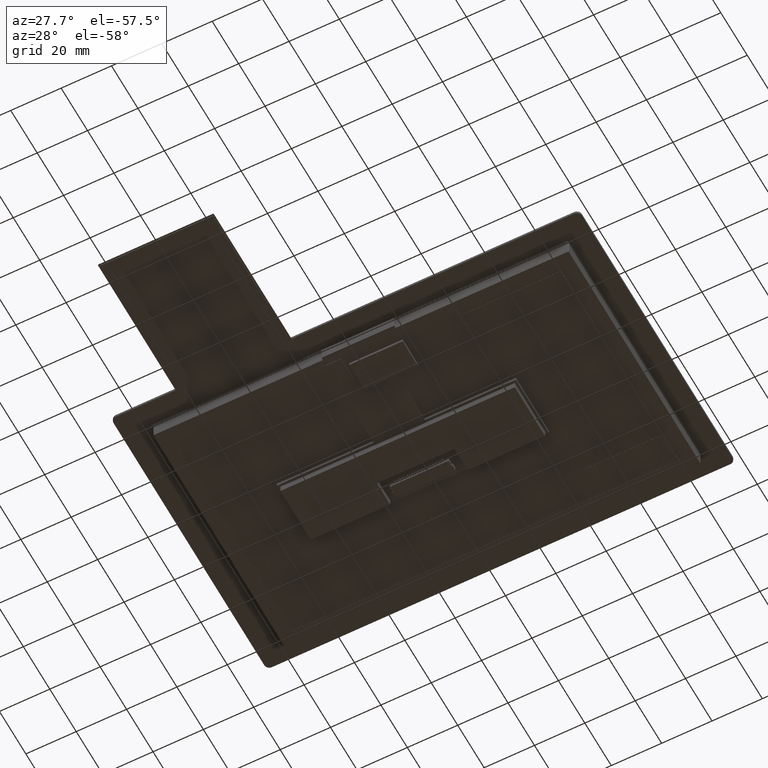
[diagram: clean part render]
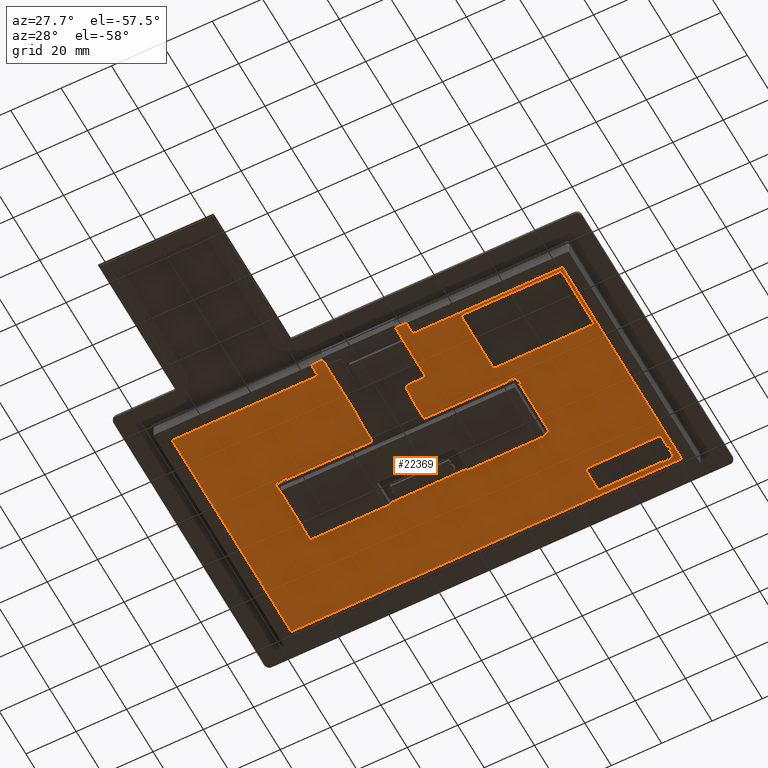
[diagram: same view with one face highlighted and labeled with its STEP entity id]
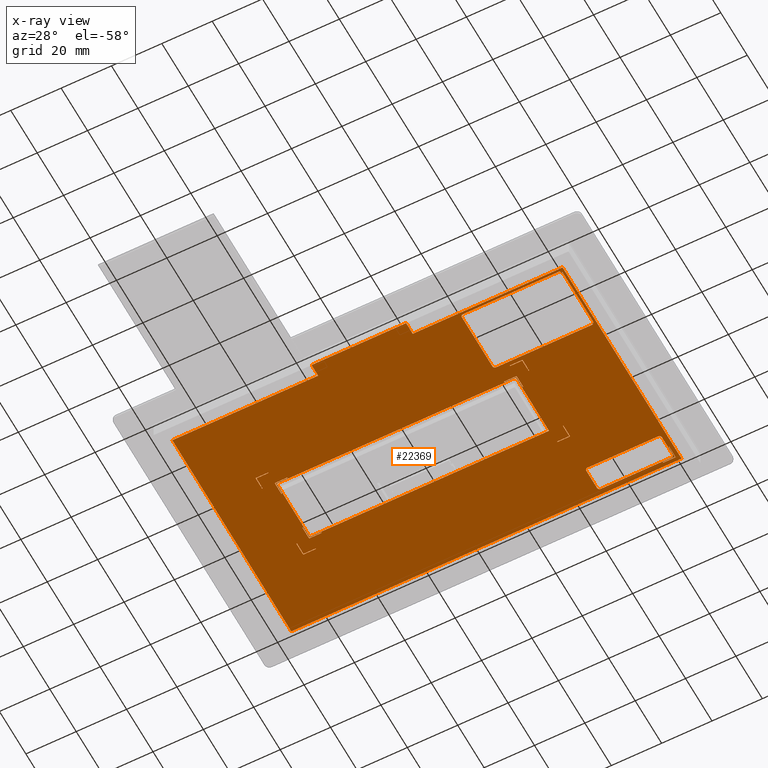
[diagram: x-ray of the same camera — body ghosted, the highlighted face saturated]
A machine part, auxiliary view. The second image highlights one B-rep face of the part: STEP entity #22369.
The next image is the same camera in x-ray: the body ghosted, the highlighted face saturated — about 0% of this face is hidden behind the body in this view.
In plain terms, the highlighted planar face has unit normal (0, 0, -1).
Its self-contained STEP definition (entity closure, byte-faithful):
#115=CIRCLE('',#22492,1.);
#119=CIRCLE('',#22499,1.);
#120=CIRCLE('',#22501,1.);
#121=CIRCLE('',#22504,1.);
#148=CIRCLE('',#22608,1.);
#150=CIRCLE('',#22612,1.00000000000003);
#152=CIRCLE('',#22616,0.999999999999999);
#154=CIRCLE('',#22620,0.999999999999976);
#779=FACE_BOUND('',#3086,.T.);
#780=FACE_BOUND('',#3087,.T.);
#781=FACE_BOUND('',#3088,.T.);
#782=FACE_BOUND('',#3089,.T.);
#783=FACE_BOUND('',#3090,.T.);
#784=FACE_BOUND('',#3091,.T.);
#785=FACE_BOUND('',#3092,.T.);
#786=FACE_BOUND('',#3093,.T.);
#787=FACE_BOUND('',#3094,.T.);
#788=FACE_BOUND('',#3095,.T.);
#789=FACE_BOUND('',#3096,.T.);
#1866=FACE_OUTER_BOUND('',#3085,.T.);
#3085=EDGE_LOOP('',(#20027,#20028,#20029,#20030,#20031,#20032,#20033,#20034));
#3086=EDGE_LOOP('',(#20035,#20036,#20037,#20038,#20039,#20040,#20041,#20042));
#3087=EDGE_LOOP('',(#20043,#20044,#20045,#20046,#20047,#20048,#20049,#20050));
#3088=EDGE_LOOP('',(#20051,#20052,#20053,#20054));
#3089=EDGE_LOOP('',(#20055,#20056,#20057,#20058,#20059,#20060));
#3090=EDGE_LOOP('',(#20061,#20062,#20063,#20064,#20065,#20066));
#3091=EDGE_LOOP('',(#20067,#20068,#20069,#20070,#20071,#20072));
#3092=EDGE_LOOP('',(#20073,#20074,#20075,#20076,#20077,#20078));
#3093=EDGE_LOOP('',(#20079,#20080,#20081,#20082,#20083,#20084));
#3094=EDGE_LOOP('',(#20085,#20086,#20087,#20088,#20089,#20090));
#3095=EDGE_LOOP('',(#20091,#20092,#20093,#20094,#20095,#20096));
#3096=EDGE_LOOP('',(#20097,#20098,#20099,#20100,#20101,#20102));
#3248=LINE('',#30207,#5993);
#3254=LINE('',#30222,#5999);
#3256=LINE('',#30228,#6001);
#3257=LINE('',#30230,#6002);
#3443=LINE('',#30667,#6188);
#3447=LINE('',#30679,#6192);
#3451=LINE('',#30691,#6196);
#3455=LINE('',#30702,#6200);
#5723=LINE('',#36078,#8468);
#5726=LINE('',#36083,#8471);
#5728=LINE('',#36087,#8473);
#5730=LINE('',#36090,#8475);
#5731=LINE('',#36094,#8476);
#5735=LINE('',#36102,#8480);
#5738=LINE('',#36108,#8483);
#5741=LINE('',#36114,#8486);
#5744=LINE('',#36120,#8489);
#5747=LINE('',#36126,#8492);
#5750=LINE('',#36132,#8495);
#5756=LINE('',#36149,#8501);
#5757=LINE('',#36152,#8502);
#5758=LINE('',#36154,#8503);
#5759=LINE('',#36156,#8504);
#5760=LINE('',#36158,#8505);
#5761=LINE('',#36160,#8506);
#5762=LINE('',#36161,#8507);
#5763=LINE('',#36164,#8508);
#5764=LINE('',#36166,#8509);
#5765=LINE('',#36168,#8510);
#5766=LINE('',#36170,#8511);
#5767=LINE('',#36172,#8512);
#5768=LINE('',#36173,#8513);
#5769=LINE('',#36176,#8514);
#5770=LINE('',#36178,#8515);
#5771=LINE('',#36180,#8516);
#5772=LINE('',#36182,#8517);
#5773=LINE('',#36184,#8518);
#5774=LINE('',#36185,#8519);
#5775=LINE('',#36188,#8520);
#5776=LINE('',#36190,#8521);
#5777=LINE('',#36192,#8522);
#5778=LINE('',#36194,#8523);
#5779=LINE('',#36196,#8524);
#5780=LINE('',#36197,#8525);
#5781=LINE('',#36200,#8526);
#5782=LINE('',#36202,#8527);
#5783=LINE('',#36204,#8528);
#5784=LINE('',#36206,#8529);
#5785=LINE('',#36208,#8530);
#5786=LINE('',#36209,#8531);
#5787=LINE('',#36212,#8532);
#5788=LINE('',#36214,#8533);
#5789=LINE('',#36216,#8534);
#5790=LINE('',#36218,#8535);
#5791=LINE('',#36220,#8536);
#5792=LINE('',#36221,#8537);
#5793=LINE('',#36224,#8538);
#5794=LINE('',#36226,#8539);
#5795=LINE('',#36228,#8540);
#5796=LINE('',#36230,#8541);
#5797=LINE('',#36232,#8542);
#5798=LINE('',#36233,#8543);
#5799=LINE('',#36236,#8544);
#5800=LINE('',#36238,#8545);
#5801=LINE('',#36240,#8546);
#5802=LINE('',#36242,#8547);
#5803=LINE('',#36244,#8548);
#5804=LINE('',#36245,#8549);
#5993=VECTOR('',#24231,10.);
#5999=VECTOR('',#24247,10.);
#6001=VECTOR('',#24255,10.);
#6002=VECTOR('',#24258,10.);
#6188=VECTOR('',#24652,10.);
#6192=VECTOR('',#24664,10.);
#6196=VECTOR('',#24676,10.);
#6200=VECTOR('',#24688,10.);
#8468=VECTOR('',#29672,10.);
#8471=VECTOR('',#29677,10.);
#8473=VECTOR('',#29681,10.);
#8475=VECTOR('',#29685,10.);
#8476=VECTOR('',#29688,10.);
#8480=VECTOR('',#29694,10.);
#8483=VECTOR('',#29699,10.);
#8486=VECTOR('',#29704,10.);
#8489=VECTOR('',#29709,10.);
#8492=VECTOR('',#29714,10.);
#8495=VECTOR('',#29719,10.);
#8501=VECTOR('',#29737,1000.);
#8502=VECTOR('',#29738,1000.);
#8503=VECTOR('',#29739,1000.);
#8504=VECTOR('',#29740,1000.);
#8505=VECTOR('',#29741,1000.);
#8506=VECTOR('',#29742,1000.);
#8507=VECTOR('',#29743,1000.);
#8508=VECTOR('',#29744,1000.);
#8509=VECTOR('',#29745,1000.);
#8510=VECTOR('',#29746,1000.);
#8511=VECTOR('',#29747,1000.);
#8512=VECTOR('',#29748,1000.);
#8513=VECTOR('',#29749,1000.);
#8514=VECTOR('',#29750,1000.);
#8515=VECTOR('',#29751,1000.);
#8516=VECTOR('',#29752,1000.);
#8517=VECTOR('',#29753,1000.);
#8518=VECTOR('',#29754,1000.);
#8519=VECTOR('',#29755,1000.);
#8520=VECTOR('',#29756,1000.);
#8521=VECTOR('',#29757,1000.);
#8522=VECTOR('',#29758,1000.);
#8523=VECTOR('',#29759,1000.);
#8524=VECTOR('',#29760,1000.);
#8525=VECTOR('',#29761,1000.);
#8526=VECTOR('',#29762,1000.);
#8527=VECTOR('',#29763,1000.);
#8528=VECTOR('',#29764,1000.);
#8529=VECTOR('',#29765,1000.);
#8530=VECTOR('',#29766,1000.);
#8531=VECTOR('',#29767,1000.);
#8532=VECTOR('',#29768,1000.);
#8533=VECTOR('',#29769,1000.);
#8534=VECTOR('',#29770,1000.);
#8535=VECTOR('',#29771,1000.);
#8536=VECTOR('',#29772,1000.);
#8537=VECTOR('',#29773,1000.);
#8538=VECTOR('',#29774,1000.);
#8539=VECTOR('',#29775,1000.);
#8540=VECTOR('',#29776,1000.);
#8541=VECTOR('',#29777,1000.);
#8542=VECTOR('',#29778,1000.);
#8543=VECTOR('',#29779,1000.);
#8544=VECTOR('',#29780,1000.);
#8545=VECTOR('',#29781,1000.);
#8546=VECTOR('',#29782,1000.);
#8547=VECTOR('',#29783,1000.);
#8548=VECTOR('',#29784,1000.);
#8549=VECTOR('',#29785,1000.);
#8708=VERTEX_POINT('',#30186);
#8709=VERTEX_POINT('',#30188);
#8716=VERTEX_POINT('',#30206);
#8717=VERTEX_POINT('',#30210);
#8718=VERTEX_POINT('',#30214);
#8719=VERTEX_POINT('',#30216);
#8720=VERTEX_POINT('',#30220);
#8721=VERTEX_POINT('',#30224);
#8864=VERTEX_POINT('',#30657);
#8865=VERTEX_POINT('',#30658);
#8868=VERTEX_POINT('',#30666);
#8870=VERTEX_POINT('',#30672);
#8872=VERTEX_POINT('',#30678);
#8874=VERTEX_POINT('',#30684);
#8876=VERTEX_POINT('',#30690);
#8878=VERTEX_POINT('',#30696);
#10628=VERTEX_POINT('',#36076);
#10629=VERTEX_POINT('',#36077);
#10630=VERTEX_POINT('',#36082);
#10631=VERTEX_POINT('',#36086);
#10632=VERTEX_POINT('',#36092);
#10633=VERTEX_POINT('',#36093);
#10636=VERTEX_POINT('',#36101);
#10638=VERTEX_POINT('',#36107);
#10640=VERTEX_POINT('',#36113);
#10642=VERTEX_POINT('',#36119);
#10644=VERTEX_POINT('',#36125);
#10646=VERTEX_POINT('',#36131);
#10652=VERTEX_POINT('',#36150);
#10653=VERTEX_POINT('',#36151);
#10654=VERTEX_POINT('',#36153);
#10655=VERTEX_POINT('',#36155);
#10656=VERTEX_POINT('',#36157);
#10657=VERTEX_POINT('',#36159);
#10658=VERTEX_POINT('',#36162);
#10659=VERTEX_POINT('',#36163);
#10660=VERTEX_POINT('',#36165);
#10661=VERTEX_POINT('',#36167);
#10662=VERTEX_POINT('',#36169);
#10663=VERTEX_POINT('',#36171);
#10664=VERTEX_POINT('',#36174);
#10665=VERTEX_POINT('',#36175);
#10666=VERTEX_POINT('',#36177);
#10667=VERTEX_POINT('',#36179);
#10668=VERTEX_POINT('',#36181);
#10669=VERTEX_POINT('',#36183);
#10670=VERTEX_POINT('',#36186);
#10671=VERTEX_POINT('',#36187);
#10672=VERTEX_POINT('',#36189);
#10673=VERTEX_POINT('',#36191);
#10674=VERTEX_POINT('',#36193);
#10675=VERTEX_POINT('',#36195);
#10676=VERTEX_POINT('',#36198);
#10677=VERTEX_POINT('',#36199);
#10678=VERTEX_POINT('',#36201);
#10679=VERTEX_POINT('',#36203);
#10680=VERTEX_POINT('',#36205);
#10681=VERTEX_POINT('',#36207);
#10682=VERTEX_POINT('',#36210);
#10683=VERTEX_POINT('',#36211);
#10684=VERTEX_POINT('',#36213);
#10685=VERTEX_POINT('',#36215);
#10686=VERTEX_POINT('',#36217);
#10687=VERTEX_POINT('',#36219);
#10688=VERTEX_POINT('',#36222);
#10689=VERTEX_POINT('',#36223);
#10690=VERTEX_POINT('',#36225);
#10691=VERTEX_POINT('',#36227);
#10692=VERTEX_POINT('',#36229);
#10693=VERTEX_POINT('',#36231);
#10694=VERTEX_POINT('',#36234);
#10695=VERTEX_POINT('',#36235);
#10696=VERTEX_POINT('',#36237);
#10697=VERTEX_POINT('',#36239);
#10698=VERTEX_POINT('',#36241);
#10699=VERTEX_POINT('',#36243);
#10832=EDGE_CURVE('',#8709,#8708,#115,.T.);
#10841=EDGE_CURVE('',#8716,#8709,#3248,.T.);
#10843=EDGE_CURVE('',#8717,#8716,#119,.T.);
#10846=EDGE_CURVE('',#8719,#8718,#120,.T.);
#10849=EDGE_CURVE('',#8718,#8720,#3254,.T.);
#10851=EDGE_CURVE('',#8720,#8721,#121,.T.);
#10852=EDGE_CURVE('',#8721,#8717,#3256,.T.);
#10853=EDGE_CURVE('',#8708,#8719,#3257,.T.);
#11063=EDGE_CURVE('',#8864,#8865,#148,.T.);
#11067=EDGE_CURVE('',#8868,#8864,#3443,.T.);
#11070=EDGE_CURVE('',#8870,#8868,#150,.T.);
#11073=EDGE_CURVE('',#8872,#8870,#3447,.T.);
#11076=EDGE_CURVE('',#8874,#8872,#152,.T.);
#11079=EDGE_CURVE('',#8876,#8874,#3451,.T.);
#11082=EDGE_CURVE('',#8878,#8876,#154,.T.);
#11085=EDGE_CURVE('',#8865,#8878,#3455,.T.);
#13771=EDGE_CURVE('',#10628,#10629,#5723,.T.);
#13774=EDGE_CURVE('',#10630,#10628,#5726,.T.);
#13776=EDGE_CURVE('',#10631,#10630,#5728,.T.);
#13778=EDGE_CURVE('',#10629,#10631,#5730,.T.);
#13779=EDGE_CURVE('',#10632,#10633,#5731,.T.);
#13783=EDGE_CURVE('',#10633,#10636,#5735,.T.);
#13786=EDGE_CURVE('',#10636,#10638,#5738,.T.);
#13789=EDGE_CURVE('',#10638,#10640,#5741,.T.);
#13792=EDGE_CURVE('',#10640,#10642,#5744,.T.);
#13795=EDGE_CURVE('',#10642,#10644,#5747,.T.);
#13798=EDGE_CURVE('',#10644,#10646,#5750,.T.);
#13808=EDGE_CURVE('',#10632,#10646,#5756,.T.);
#13809=EDGE_CURVE('',#10652,#10653,#5757,.T.);
#13810=EDGE_CURVE('',#10654,#10652,#5758,.T.);
#13811=EDGE_CURVE('',#10655,#10654,#5759,.T.);
#13812=EDGE_CURVE('',#10656,#10655,#5760,.T.);
#13813=EDGE_CURVE('',#10657,#10656,#5761,.T.);
#13814=EDGE_CURVE('',#10653,#10657,#5762,.T.);
#13815=EDGE_CURVE('',#10658,#10659,#5763,.T.);
#13816=EDGE_CURVE('',#10660,#10658,#5764,.T.);
#13817=EDGE_CURVE('',#10661,#10660,#5765,.T.);
#13818=EDGE_CURVE('',#10662,#10661,#5766,.T.);
#13819=EDGE_CURVE('',#10663,#10662,#5767,.T.);
#13820=EDGE_CURVE('',#10659,#10663,#5768,.T.);
#13821=EDGE_CURVE('',#10664,#10665,#5769,.T.);
#13822=EDGE_CURVE('',#10666,#10664,#5770,.T.);
#13823=EDGE_CURVE('',#10667,#10666,#5771,.T.);
#13824=EDGE_CURVE('',#10668,#10667,#5772,.T.);
#13825=EDGE_CURVE('',#10669,#10668,#5773,.T.);
#13826=EDGE_CURVE('',#10665,#10669,#5774,.T.);
#13827=EDGE_CURVE('',#10670,#10671,#5775,.T.);
#13828=EDGE_CURVE('',#10672,#10670,#5776,.T.);
#13829=EDGE_CURVE('',#10673,#10672,#5777,.T.);
#13830=EDGE_CURVE('',#10674,#10673,#5778,.T.);
#13831=EDGE_CURVE('',#10675,#10674,#5779,.T.);
#13832=EDGE_CURVE('',#10671,#10675,#5780,.T.);
#13833=EDGE_CURVE('',#10676,#10677,#5781,.T.);
#13834=EDGE_CURVE('',#10678,#10676,#5782,.T.);
#13835=EDGE_CURVE('',#10679,#10678,#5783,.T.);
#13836=EDGE_CURVE('',#10680,#10679,#5784,.T.);
#13837=EDGE_CURVE('',#10681,#10680,#5785,.T.);
#13838=EDGE_CURVE('',#10677,#10681,#5786,.T.);
#13839=EDGE_CURVE('',#10682,#10683,#5787,.T.);
#13840=EDGE_CURVE('',#10684,#10682,#5788,.T.);
#13841=EDGE_CURVE('',#10685,#10684,#5789,.T.);
#13842=EDGE_CURVE('',#10686,#10685,#5790,.T.);
#13843=EDGE_CURVE('',#10687,#10686,#5791,.T.);
#13844=EDGE_CURVE('',#10683,#10687,#5792,.T.);
#13845=EDGE_CURVE('',#10688,#10689,#5793,.T.);
#13846=EDGE_CURVE('',#10690,#10688,#5794,.T.);
#13847=EDGE_CURVE('',#10691,#10690,#5795,.T.);
#13848=EDGE_CURVE('',#10692,#10691,#5796,.T.);
#13849=EDGE_CURVE('',#10693,#10692,#5797,.T.);
#13850=EDGE_CURVE('',#10689,#10693,#5798,.T.);
#13851=EDGE_CURVE('',#10694,#10695,#5799,.T.);
#13852=EDGE_CURVE('',#10696,#10694,#5800,.T.);
#13853=EDGE_CURVE('',#10697,#10696,#5801,.T.);
#13854=EDGE_CURVE('',#10698,#10697,#5802,.T.);
#13855=EDGE_CURVE('',#10699,#10698,#5803,.T.);
#13856=EDGE_CURVE('',#10695,#10699,#5804,.T.);
#20027=ORIENTED_EDGE('',*,*,#13779,.T.);
#20028=ORIENTED_EDGE('',*,*,#13783,.T.);
#20029=ORIENTED_EDGE('',*,*,#13786,.T.);
#20030=ORIENTED_EDGE('',*,*,#13789,.T.);
#20031=ORIENTED_EDGE('',*,*,#13792,.T.);
#20032=ORIENTED_EDGE('',*,*,#13795,.T.);
#20033=ORIENTED_EDGE('',*,*,#13798,.T.);
#20034=ORIENTED_EDGE('',*,*,#13808,.F.);
#20035=ORIENTED_EDGE('',*,*,#10846,.T.);
#20036=ORIENTED_EDGE('',*,*,#10849,.T.);
#20037=ORIENTED_EDGE('',*,*,#10851,.T.);
#20038=ORIENTED_EDGE('',*,*,#10852,.T.);
#20039=ORIENTED_EDGE('',*,*,#10843,.T.);
#20040=ORIENTED_EDGE('',*,*,#10841,.T.);
#20041=ORIENTED_EDGE('',*,*,#10832,.T.);
#20042=ORIENTED_EDGE('',*,*,#10853,.T.);
#20043=ORIENTED_EDGE('',*,*,#11063,.T.);
#20044=ORIENTED_EDGE('',*,*,#11085,.T.);
#20045=ORIENTED_EDGE('',*,*,#11082,.T.);
#20046=ORIENTED_EDGE('',*,*,#11079,.T.);
#20047=ORIENTED_EDGE('',*,*,#11076,.T.);
#20048=ORIENTED_EDGE('',*,*,#11073,.T.);
#20049=ORIENTED_EDGE('',*,*,#11070,.T.);
#20050=ORIENTED_EDGE('',*,*,#11067,.T.);
#20051=ORIENTED_EDGE('',*,*,#13771,.T.);
#20052=ORIENTED_EDGE('',*,*,#13778,.T.);
#20053=ORIENTED_EDGE('',*,*,#13776,.T.);
#20054=ORIENTED_EDGE('',*,*,#13774,.T.);
#20055=ORIENTED_EDGE('',*,*,#13809,.F.);
#20056=ORIENTED_EDGE('',*,*,#13810,.F.);
#20057=ORIENTED_EDGE('',*,*,#13811,.F.);
#20058=ORIENTED_EDGE('',*,*,#13812,.F.);
#20059=ORIENTED_EDGE('',*,*,#13813,.F.);
#20060=ORIENTED_EDGE('',*,*,#13814,.F.);
#20061=ORIENTED_EDGE('',*,*,#13815,.F.);
#20062=ORIENTED_EDGE('',*,*,#13816,.F.);
#20063=ORIENTED_EDGE('',*,*,#13817,.F.);
#20064=ORIENTED_EDGE('',*,*,#13818,.F.);
#20065=ORIENTED_EDGE('',*,*,#13819,.F.);
#20066=ORIENTED_EDGE('',*,*,#13820,.F.);
#20067=ORIENTED_EDGE('',*,*,#13821,.F.);
#20068=ORIENTED_EDGE('',*,*,#13822,.F.);
#20069=ORIENTED_EDGE('',*,*,#13823,.F.);
#20070=ORIENTED_EDGE('',*,*,#13824,.F.);
#20071=ORIENTED_EDGE('',*,*,#13825,.F.);
#20072=ORIENTED_EDGE('',*,*,#13826,.F.);
#20073=ORIENTED_EDGE('',*,*,#13827,.F.);
#20074=ORIENTED_EDGE('',*,*,#13828,.F.);
#20075=ORIENTED_EDGE('',*,*,#13829,.F.);
#20076=ORIENTED_EDGE('',*,*,#13830,.F.);
#20077=ORIENTED_EDGE('',*,*,#13831,.F.);
#20078=ORIENTED_EDGE('',*,*,#13832,.F.);
#20079=ORIENTED_EDGE('',*,*,#13833,.F.);
#20080=ORIENTED_EDGE('',*,*,#13834,.F.);
#20081=ORIENTED_EDGE('',*,*,#13835,.F.);
#20082=ORIENTED_EDGE('',*,*,#13836,.F.);
#20083=ORIENTED_EDGE('',*,*,#13837,.F.);
#20084=ORIENTED_EDGE('',*,*,#13838,.F.);
#20085=ORIENTED_EDGE('',*,*,#13839,.F.);
#20086=ORIENTED_EDGE('',*,*,#13840,.F.);
#20087=ORIENTED_EDGE('',*,*,#13841,.F.);
#20088=ORIENTED_EDGE('',*,*,#13842,.F.);
#20089=ORIENTED_EDGE('',*,*,#13843,.F.);
#20090=ORIENTED_EDGE('',*,*,#13844,.F.);
#20091=ORIENTED_EDGE('',*,*,#13845,.F.);
#20092=ORIENTED_EDGE('',*,*,#13846,.F.);
#20093=ORIENTED_EDGE('',*,*,#13847,.F.);
#20094=ORIENTED_EDGE('',*,*,#13848,.F.);
#20095=ORIENTED_EDGE('',*,*,#13849,.F.);
#20096=ORIENTED_EDGE('',*,*,#13850,.F.);
#20097=ORIENTED_EDGE('',*,*,#13851,.F.);
#20098=ORIENTED_EDGE('',*,*,#13852,.F.);
#20099=ORIENTED_EDGE('',*,*,#13853,.F.);
#20100=ORIENTED_EDGE('',*,*,#13854,.F.);
#20101=ORIENTED_EDGE('',*,*,#13855,.F.);
#20102=ORIENTED_EDGE('',*,*,#13856,.F.);
#21235=PLANE('',#23996);
#22369=ADVANCED_FACE('',(#1866,#779,#780,#781,#782,#783,#784,#785,#786,
#787,#788,#789),#21235,.T.);
#22492=AXIS2_PLACEMENT_3D('',#30189,#24214,#24215);
#22499=AXIS2_PLACEMENT_3D('',#30211,#24235,#24236);
#22501=AXIS2_PLACEMENT_3D('',#30217,#24241,#24242);
#22504=AXIS2_PLACEMENT_3D('',#30226,#24251,#24252);
#22608=AXIS2_PLACEMENT_3D('',#30659,#24644,#24645);
#22612=AXIS2_PLACEMENT_3D('',#30673,#24657,#24658);
#22616=AXIS2_PLACEMENT_3D('',#30685,#24669,#24670);
#22620=AXIS2_PLACEMENT_3D('',#30697,#24681,#24682);
#23996=AXIS2_PLACEMENT_3D('',#36148,#29735,#29736);
#24214=DIRECTION('center_axis',(0.,0.,1.));
#24215=DIRECTION('ref_axis',(-0.707106781186548,-0.707106781186548,0.));
#24231=DIRECTION('',(3.5527136788005E-16,-1.,0.));
#24235=DIRECTION('center_axis',(0.,0.,1.));
#24236=DIRECTION('ref_axis',(-0.707106781186548,0.707106781186548,0.));
#24241=DIRECTION('center_axis',(0.,0.,1.));
#24242=DIRECTION('ref_axis',(0.707106781186549,-0.707106781186546,0.));
#24247=DIRECTION('',(2.66453525910038E-16,1.,0.));
#24251=DIRECTION('center_axis',(0.,0.,1.));
#24252=DIRECTION('ref_axis',(0.707106781186548,0.707106781186548,0.));
#24255=DIRECTION('',(-1.,-2.22044604925031E-16,0.));
#24258=DIRECTION('',(1.,0.,0.));
#24644=DIRECTION('center_axis',(0.,0.,1.));
#24645=DIRECTION('ref_axis',(1.,0.,0.));
#24652=DIRECTION('',(0.,1.,0.));
#24657=DIRECTION('center_axis',(0.,0.,1.));
#24658=DIRECTION('ref_axis',(1.,0.,0.));
#24664=DIRECTION('',(1.,0.,0.));
#24669=DIRECTION('center_axis',(0.,0.,1.));
#24670=DIRECTION('ref_axis',(1.,0.,0.));
#24676=DIRECTION('',(0.,-1.,0.));
#24681=DIRECTION('center_axis',(0.,0.,1.));
#24682=DIRECTION('ref_axis',(1.,0.,0.));
#24688=DIRECTION('',(-1.,0.,0.));
#29672=DIRECTION('',(0.,-1.,0.));
#29677=DIRECTION('',(-1.,0.,0.));
#29681=DIRECTION('',(0.,1.,0.));
#29685=DIRECTION('',(1.,0.,0.));
#29688=DIRECTION('',(0.,1.,0.));
#29694=DIRECTION('',(-1.,0.,0.));
#29699=DIRECTION('',(0.,1.,0.));
#29704=DIRECTION('',(1.,0.,0.));
#29709=DIRECTION('',(0.,-1.,0.));
#29714=DIRECTION('',(-1.,0.,0.));
#29719=DIRECTION('',(0.,-1.,0.));
#29735=DIRECTION('center_axis',(0.,0.,-1.));
#29736=DIRECTION('ref_axis',(-1.,0.,0.));
#29737=DIRECTION('',(1.,0.,0.));
#29738=DIRECTION('',(0.,1.,0.));
#29739=DIRECTION('',(-1.,0.,0.));
#29740=DIRECTION('',(0.,-1.,0.));
#29741=DIRECTION('',(1.,0.,0.));
#29742=DIRECTION('',(0.,-1.,0.));
#29743=DIRECTION('',(1.,0.,0.));
#29744=DIRECTION('',(1.,0.,0.));
#29745=DIRECTION('',(0.,1.,0.));
#29746=DIRECTION('',(-1.,0.,0.));
#29747=DIRECTION('',(0.,-1.,0.));
#29748=DIRECTION('',(1.,0.,0.));
#29749=DIRECTION('',(0.,1.,0.));
#29750=DIRECTION('',(1.,0.,0.));
#29751=DIRECTION('',(0.,1.,0.));
#29752=DIRECTION('',(-1.,0.,0.));
#29753=DIRECTION('',(0.,-1.,0.));
#29754=DIRECTION('',(-1.,0.,0.));
#29755=DIRECTION('',(0.,-1.,0.));
#29756=DIRECTION('',(0.,-1.,0.));
#29757=DIRECTION('',(1.,0.,0.));
#29758=DIRECTION('',(0.,1.,0.));
#29759=DIRECTION('',(-1.,0.,0.));
#29760=DIRECTION('',(0.,1.,0.));
#29761=DIRECTION('',(-1.,0.,0.));
#29762=DIRECTION('',(0.,1.,0.));
#29763=DIRECTION('',(-1.,0.,0.));
#29764=DIRECTION('',(0.,-1.,0.));
#29765=DIRECTION('',(1.,0.,0.));
#29766=DIRECTION('',(0.,1.,0.));
#29767=DIRECTION('',(-1.,0.,0.));
#29768=DIRECTION('',(0.,1.,0.));
#29769=DIRECTION('',(1.,-2.89120579329468E-15,0.));
#29770=DIRECTION('',(0.,1.,0.));
#29771=DIRECTION('',(-1.,0.,0.));
#29772=DIRECTION('',(-2.77555756156289E-15,-1.,0.));
#29773=DIRECTION('',(1.,0.,0.));
#29774=DIRECTION('',(0.,-1.,0.));
#29775=DIRECTION('',(1.,0.,0.));
#29776=DIRECTION('',(-1.38777878078145E-15,1.,0.));
#29777=DIRECTION('',(-1.,2.77555756156289E-15,0.));
#29778=DIRECTION('',(0.,-1.,0.));
#29779=DIRECTION('',(1.,0.,0.));
#29780=DIRECTION('',(0.,-1.,0.));
#29781=DIRECTION('',(1.,2.77555756156289E-15,0.));
#29782=DIRECTION('',(1.38777878078145E-15,1.,0.));
#29783=DIRECTION('',(-1.,0.,0.));
#29784=DIRECTION('',(0.,-1.,0.));
#29785=DIRECTION('',(-1.,0.,0.));
#30186=CARTESIAN_POINT('',(39.0149999999791,-46.36,-8.12500000000002));
#30188=CARTESIAN_POINT('',(38.0149999999791,-45.36,-8.12500000000002));
#30189=CARTESIAN_POINT('Origin',(39.0149999999791,-45.36,-8.12500000000002));
#30206=CARTESIAN_POINT('',(38.014999999979,-22.36,-8.12500000000002));
#30207=CARTESIAN_POINT('',(38.014999999979,12.975,-8.12500000000002));
#30210=CARTESIAN_POINT('',(39.0149999999791,-21.36,-8.12500000000002));
#30211=CARTESIAN_POINT('Origin',(39.014999999979,-22.36,-8.12500000000002));
#30214=CARTESIAN_POINT('',(78.014999999979,-45.36,-8.12500000000002));
#30216=CARTESIAN_POINT('',(77.014999999979,-46.36,-8.12500000000002));
#30217=CARTESIAN_POINT('Origin',(77.014999999979,-45.36,-8.12500000000002));
#30220=CARTESIAN_POINT('',(78.014999999979,-22.36,-8.12500000000002));
#30222=CARTESIAN_POINT('',(78.0149999999791,6.72499999999999,-8.12500000000002));
#30224=CARTESIAN_POINT('',(77.0149999999791,-21.36,-8.12500000000002));
#30226=CARTESIAN_POINT('Origin',(77.0149999999791,-22.36,-8.12500000000002));
#30228=CARTESIAN_POINT('',(70.8499999999895,-21.36,-8.12500000000002));
#30230=CARTESIAN_POINT('',(60.8499999999895,-46.36,-8.12500000000002));
#30657=CARTESIAN_POINT('',(77.015,39.64,-8.12500000000002));
#30658=CARTESIAN_POINT('',(76.015,40.64,-8.12500000000002));
#30659=CARTESIAN_POINT('Origin',(76.015,39.64,-8.12500000000002));
#30666=CARTESIAN_POINT('',(77.015,31.64,-8.12500000000002));
#30667=CARTESIAN_POINT('',(77.015,43.475,-8.12500000000002));
#30672=CARTESIAN_POINT('',(76.015,30.64,-8.12500000000002));
#30673=CARTESIAN_POINT('Origin',(76.015,31.64,-8.12500000000002));
#30678=CARTESIAN_POINT('',(48.015,30.64,-8.12500000000002));
#30679=CARTESIAN_POINT('',(79.85,30.64,-8.12500000000002));
#30684=CARTESIAN_POINT('',(47.015,31.64,-8.12500000000002));
#30685=CARTESIAN_POINT('Origin',(48.015,31.64,-8.12500000000002));
#30690=CARTESIAN_POINT('',(47.015,39.64,-8.12500000000002));
#30691=CARTESIAN_POINT('',(47.015,39.475,-8.12500000000002));
#30696=CARTESIAN_POINT('',(48.015,40.64,-8.12500000000002));
#30697=CARTESIAN_POINT('Origin',(48.015,39.64,-8.12500000000002));
#30702=CARTESIAN_POINT('',(65.85,40.64,-8.12500000000002));
#36076=CARTESIAN_POINT('',(-51.875,10.73,-8.12500000000002));
#36077=CARTESIAN_POINT('',(-51.875,-14.27,-8.12500000000002));
#36078=CARTESIAN_POINT('',(-51.875,16.52,-8.12500000000002));
#36082=CARTESIAN_POINT('',(43.125,10.73,-8.12500000000002));
#36083=CARTESIAN_POINT('',(15.905,10.73,-8.12500000000002));
#36086=CARTESIAN_POINT('',(43.125,-14.27,-8.12500000000002));
#36087=CARTESIAN_POINT('',(43.125,16.52,-8.12500000000002));
#36090=CARTESIAN_POINT('',(15.905,-14.27,-8.12500000000002));
#36092=CARTESIAN_POINT('',(-18.06,-52.36,-8.12500000000002));
#36093=CARTESIAN_POINT('',(-18.06,-47.36,-8.12500000000002));
#36094=CARTESIAN_POINT('',(-18.06,-0.0249999999999995,-8.12500000000002));
#36101=CARTESIAN_POINT('',(-75.9850000000209,-47.36,-8.12500000000002));
#36102=CARTESIAN_POINT('',(3.84999999998954,-47.36,-8.12500000000002));
#36107=CARTESIAN_POINT('',(-75.9850000000209,42.64,-8.12500000000002));
#36108=CARTESIAN_POINT('',(-75.9850000000209,44.975,-8.12500000000002));
#36113=CARTESIAN_POINT('',(79.0149999999791,42.64,-8.12500000000002));
#36114=CARTESIAN_POINT('',(81.3499999999895,42.64,-8.12500000000002));
#36119=CARTESIAN_POINT('',(79.0149999999791,-47.36,-8.12500000000002));
#36120=CARTESIAN_POINT('',(79.0149999999791,-0.0250000000000083,-8.12500000000002));
#36125=CARTESIAN_POINT('',(19.52,-47.36,-8.12500000000002));
#36126=CARTESIAN_POINT('',(51.6025,-47.36,-8.12500000000002));
#36131=CARTESIAN_POINT('',(19.52,-52.36,-8.12500000000002));
#36132=CARTESIAN_POINT('',(19.52,-2.52500000000001,-8.12500000000002));
#36148=CARTESIAN_POINT('Origin',(83.685,47.31,-8.12500000000002));
#36149=CARTESIAN_POINT('',(-80.655,-52.36,-8.12500000000002));
#36150=CARTESIAN_POINT('',(-57.375,-19.77,-8.12500000000002));
#36151=CARTESIAN_POINT('',(-57.375,-14.77,-8.12500000000002));
#36152=CARTESIAN_POINT('',(-57.375,-19.77,-8.12500000000002));
#36153=CARTESIAN_POINT('',(-52.375,-19.77,-8.12500000000002));
#36154=CARTESIAN_POINT('',(-57.375,-19.77,-8.12500000000002));
#36155=CARTESIAN_POINT('',(-52.375,-19.57,-8.12500000000002));
#36156=CARTESIAN_POINT('',(-52.375,-19.77,-8.12500000000002));
#36157=CARTESIAN_POINT('',(-57.175,-19.57,-8.12500000000002));
#36158=CARTESIAN_POINT('',(-57.175,-19.57,-8.12500000000002));
#36159=CARTESIAN_POINT('',(-57.175,-14.77,-8.12500000000002));
#36160=CARTESIAN_POINT('',(-57.175,-19.57,-8.12500000000002));
#36161=CARTESIAN_POINT('',(-57.375,-14.77,-8.12500000000002));
#36162=CARTESIAN_POINT('',(43.625,-19.57,-8.12500000000002));
#36163=CARTESIAN_POINT('',(48.425,-19.57,-8.12500000000002));
#36164=CARTESIAN_POINT('',(48.425,-19.57,-8.12500000000002));
#36165=CARTESIAN_POINT('',(43.625,-19.77,-8.12500000000002));
#36166=CARTESIAN_POINT('',(43.625,-19.77,-8.12500000000002));
#36167=CARTESIAN_POINT('',(48.625,-19.77,-8.12500000000002));
#36168=CARTESIAN_POINT('',(48.625,-19.77,-8.12500000000002));
#36169=CARTESIAN_POINT('',(48.625,-14.77,-8.12500000000002));
#36170=CARTESIAN_POINT('',(48.625,-19.77,-8.12500000000002));
#36171=CARTESIAN_POINT('',(48.425,-14.77,-8.12500000000002));
#36172=CARTESIAN_POINT('',(48.625,-14.77,-8.12500000000002));
#36173=CARTESIAN_POINT('',(48.425,-19.57,-8.12500000000002));
#36174=CARTESIAN_POINT('',(-57.375,16.23,-8.12500000000002));
#36175=CARTESIAN_POINT('',(-52.375,16.23,-8.12500000000002));
#36176=CARTESIAN_POINT('',(-57.375,16.23,-8.12500000000002));
#36177=CARTESIAN_POINT('',(-57.375,11.23,-8.12500000000002));
#36178=CARTESIAN_POINT('',(-57.375,16.23,-8.12500000000002));
#36179=CARTESIAN_POINT('',(-57.175,11.23,-8.12500000000002));
#36180=CARTESIAN_POINT('',(-57.375,11.23,-8.12500000000002));
#36181=CARTESIAN_POINT('',(-57.175,16.03,-8.12500000000002));
#36182=CARTESIAN_POINT('',(-57.175,16.03,-8.12500000000002));
#36183=CARTESIAN_POINT('',(-52.375,16.03,-8.12500000000002));
#36184=CARTESIAN_POINT('',(-57.175,16.03,-8.12500000000002));
#36185=CARTESIAN_POINT('',(-52.375,16.23,-8.12500000000002));
#36186=CARTESIAN_POINT('',(48.625,16.23,-8.12500000000002));
#36187=CARTESIAN_POINT('',(48.625,11.23,-8.12500000000002));
#36188=CARTESIAN_POINT('',(48.625,16.23,-8.12500000000002));
#36189=CARTESIAN_POINT('',(43.625,16.23,-8.12500000000002));
#36190=CARTESIAN_POINT('',(48.625,16.23,-8.12500000000002));
#36191=CARTESIAN_POINT('',(43.625,16.03,-8.12500000000002));
#36192=CARTESIAN_POINT('',(43.625,16.23,-8.12500000000002));
#36193=CARTESIAN_POINT('',(48.425,16.03,-8.12500000000002));
#36194=CARTESIAN_POINT('',(48.425,16.03,-8.12500000000002));
#36195=CARTESIAN_POINT('',(48.425,11.23,-8.12500000000002));
#36196=CARTESIAN_POINT('',(48.425,16.03,-8.12500000000002));
#36197=CARTESIAN_POINT('',(48.625,11.23,-8.12500000000002));
#36198=CARTESIAN_POINT('',(77.315,36.14,-8.12500000000002));
#36199=CARTESIAN_POINT('',(77.315,40.94,-8.12500000000002));
#36200=CARTESIAN_POINT('',(77.315,40.94,-8.12500000000002));
#36201=CARTESIAN_POINT('',(77.515,36.14,-8.12500000000002));
#36202=CARTESIAN_POINT('',(77.515,36.14,-8.12500000000002));
#36203=CARTESIAN_POINT('',(77.515,41.14,-8.12500000000002));
#36204=CARTESIAN_POINT('',(77.515,40.94,-8.12500000000002));
#36205=CARTESIAN_POINT('',(72.515,41.14,-8.12500000000002));
#36206=CARTESIAN_POINT('',(77.315,41.14,-8.12500000000002));
#36207=CARTESIAN_POINT('',(72.515,40.94,-8.12500000000002));
#36208=CARTESIAN_POINT('',(72.515,41.14,-8.12500000000002));
#36209=CARTESIAN_POINT('',(77.315,40.94,-8.12500000000002));
#36210=CARTESIAN_POINT('',(43.425,-14.57,-8.12500000000002));
#36211=CARTESIAN_POINT('',(43.425,-9.76999999999998,-8.12500000000002));
#36212=CARTESIAN_POINT('',(43.425,-14.57,-8.12500000000002));
#36213=CARTESIAN_POINT('',(38.625,-14.57,-8.12500000000002));
#36214=CARTESIAN_POINT('',(38.625,-14.57,-8.12500000000002));
#36215=CARTESIAN_POINT('',(38.625,-14.77,-8.12500000000002));
#36216=CARTESIAN_POINT('',(38.625,-14.57,-8.12500000000002));
#36217=CARTESIAN_POINT('',(43.625,-14.77,-8.12500000000002));
#36218=CARTESIAN_POINT('',(38.625,-14.77,-8.12500000000002));
#36219=CARTESIAN_POINT('',(43.625,-9.76999999999998,-8.12500000000002));
#36220=CARTESIAN_POINT('',(43.625,-14.77,-8.12500000000002));
#36221=CARTESIAN_POINT('',(43.425,-9.76999999999998,-8.12500000000002));
#36222=CARTESIAN_POINT('',(-52.175,-9.76999999999998,-8.12500000000002));
#36223=CARTESIAN_POINT('',(-52.175,-14.57,-8.12500000000002));
#36224=CARTESIAN_POINT('',(-52.175,-14.57,-8.12500000000002));
#36225=CARTESIAN_POINT('',(-52.375,-9.76999999999998,-8.12500000000002));
#36226=CARTESIAN_POINT('',(-52.175,-9.76999999999998,-8.12500000000002));
#36227=CARTESIAN_POINT('',(-52.375,-14.77,-8.12500000000002));
#36228=CARTESIAN_POINT('',(-52.375,-14.77,-8.12500000000002));
#36229=CARTESIAN_POINT('',(-47.375,-14.77,-8.12500000000002));
#36230=CARTESIAN_POINT('',(-47.375,-14.77,-8.12500000000002));
#36231=CARTESIAN_POINT('',(-47.375,-14.57,-8.12500000000002));
#36232=CARTESIAN_POINT('',(-47.375,-14.57,-8.12500000000002));
#36233=CARTESIAN_POINT('',(-47.375,-14.57,-8.12500000000002));
#36234=CARTESIAN_POINT('',(-47.375,11.23,-8.12500000000002));
#36235=CARTESIAN_POINT('',(-47.375,11.03,-8.12500000000002));
#36236=CARTESIAN_POINT('',(-47.375,11.03,-8.12500000000002));
#36237=CARTESIAN_POINT('',(-52.375,11.23,-8.12500000000002));
#36238=CARTESIAN_POINT('',(-47.375,11.23,-8.12500000000002));
#36239=CARTESIAN_POINT('',(-52.375,6.23000000000002,-8.12500000000002));
#36240=CARTESIAN_POINT('',(-52.375,11.23,-8.12500000000002));
#36241=CARTESIAN_POINT('',(-52.175,6.23000000000002,-8.12500000000002));
#36242=CARTESIAN_POINT('',(-52.175,6.23000000000002,-8.12500000000002));
#36243=CARTESIAN_POINT('',(-52.175,11.03,-8.12500000000002));
#36244=CARTESIAN_POINT('',(-52.175,11.03,-8.12500000000002));
#36245=CARTESIAN_POINT('',(-47.375,11.03,-8.12500000000002));